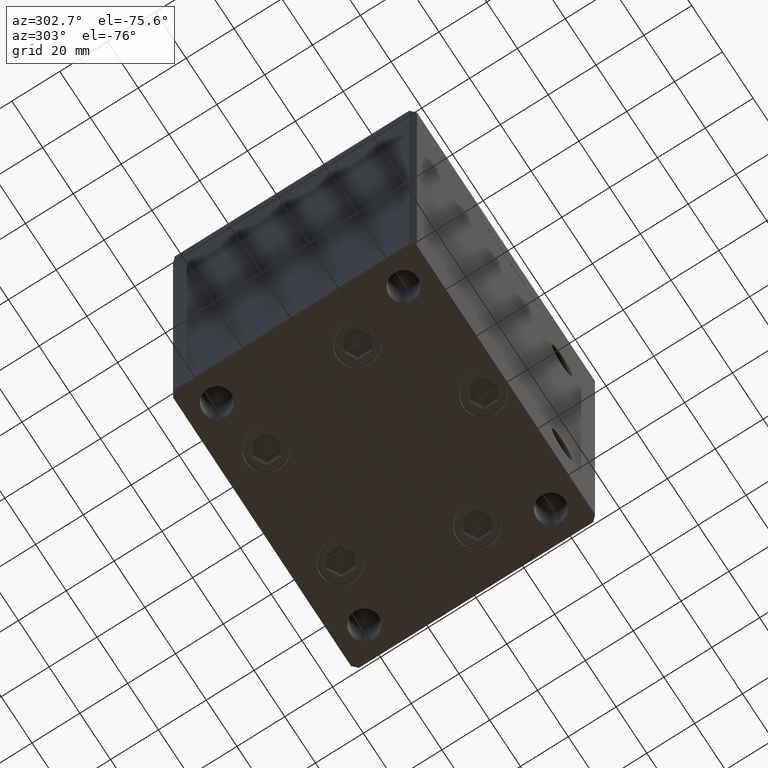
[diagram: clean part render]
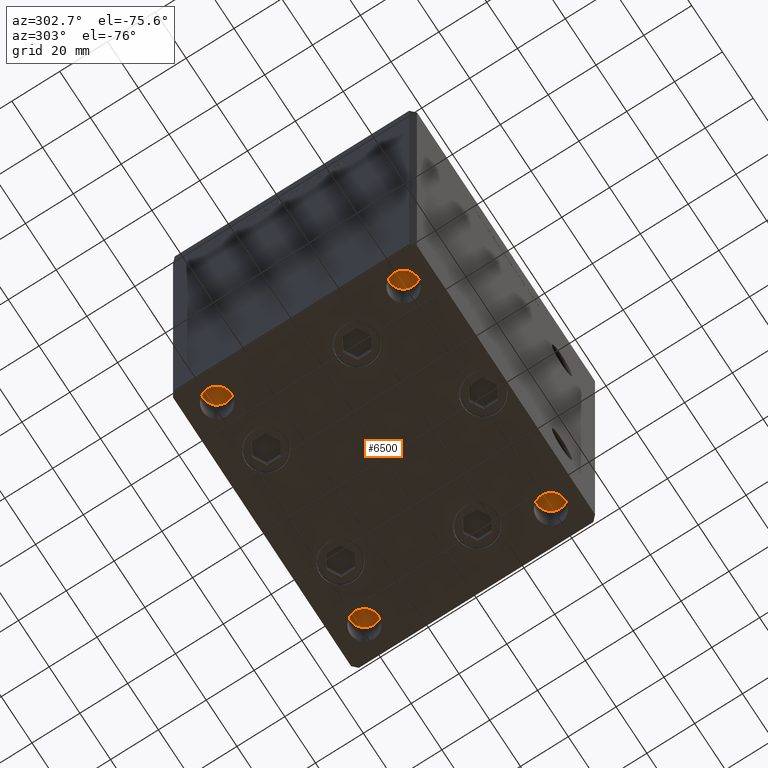
[diagram: same view with one face highlighted and labeled with its STEP entity id]
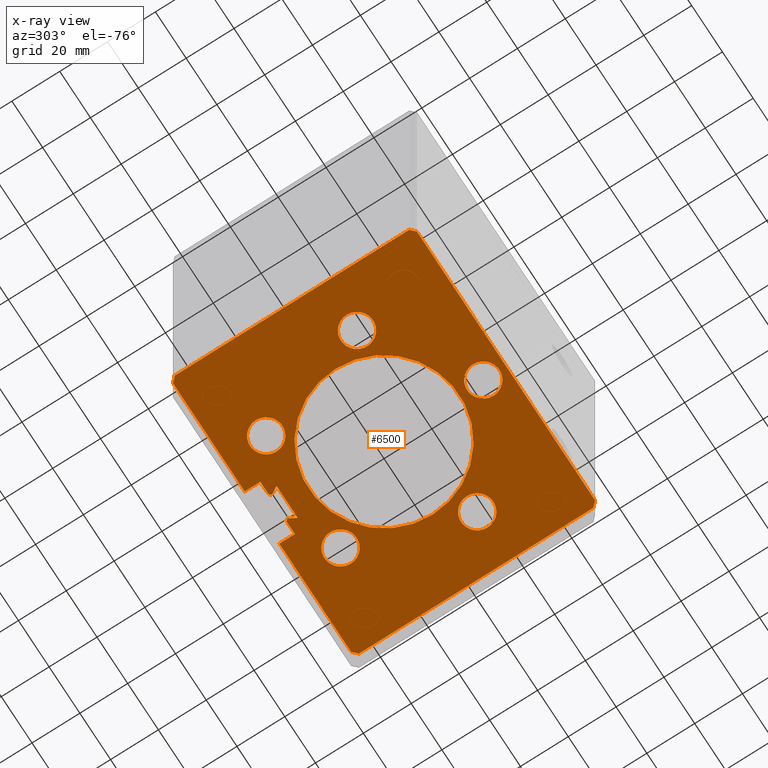
[diagram: x-ray of the same camera — body ghosted, the highlighted face saturated]
A machine part, auxiliary view. The second image highlights one B-rep face of the part: STEP entity #6500.
The next image is the same camera in x-ray: the body ghosted, the highlighted face saturated — about 0% of this face is hidden behind the body in this view.
In plain terms, the highlighted planar face has unit normal (0, 0, -1).
Its self-contained STEP definition (entity closure, byte-faithful):
#183 = ORIENTED_EDGE ( 'NONE', *, *, #1278, .F. ) ;
#347 = ORIENTED_EDGE ( 'NONE', *, *, #5618, .F. ) ;
#350 = CARTESIAN_POINT ( 'NONE',  ( 0.000000000000000000, 0.000000000000000000, 0.000000000000000000 ) ) ;
#413 = AXIS2_PLACEMENT_3D ( 'NONE', #39237, #3397, #47912 ) ;
#878 = FACE_BOUND ( 'NONE', #14622, .T. ) ;
#960 = LINE ( 'NONE', #25714, #5378 ) ;
#1192 = CARTESIAN_POINT ( 'NONE',  ( -6.183333333334001480, 44.50000000000000000, 0.000000000000000000 ) ) ;
#1209 = LINE ( 'NONE', #22258, #6580 ) ;
#1278 = EDGE_CURVE ( 'NONE', #5906, #28231, #8831, .T. ) ;
#1413 = VERTEX_POINT ( 'NONE', #8915 ) ;
#1502 = CARTESIAN_POINT ( 'NONE',  ( -5.249999999999994671, 43.56666666666598786, 0.000000000000000000 ) ) ;
#1626 = EDGE_CURVE ( 'NONE', #1413, #27657, #21430, .T. ) ;
#1825 = EDGE_CURVE ( 'NONE', #32110, #25484, #43777, .T. ) ;
#1886 = ORIENTED_EDGE ( 'NONE', *, *, #25340, .T. ) ;
#2003 = DIRECTION ( 'NONE',  ( -2.832201593431521726E-16, -1.000000000000000000, 0.000000000000000000 ) ) ;
#2180 = ORIENTED_EDGE ( 'NONE', *, *, #14448, .T. ) ;
#2249 = DIRECTION ( 'NONE',  ( -1.000000000000000000, 1.484255380514915423E-16, 0.000000000000000000 ) ) ;
#2533 = CARTESIAN_POINT ( 'NONE',  ( 30.94288941894911815, 33.71875000000000711, 0.000000000000000000 ) ) ;
#2564 = EDGE_CURVE ( 'NONE', #12321, #4527, #21509, .T. ) ;
#2909 = ORIENTED_EDGE ( 'NONE', *, *, #31407, .F. ) ;
#2963 = ORIENTED_EDGE ( 'NONE', *, *, #1825, .F. ) ;
#3156 = VECTOR ( 'NONE', #28902, 1000.000000000000114 ) ;
#3213 = VECTOR ( 'NONE', #20278, 1000.000000000000114 ) ;
#3397 = DIRECTION ( 'NONE',  ( 0.000000000000000000, 0.000000000000000000, -1.000000000000000000 ) ) ;
#3527 = LINE ( 'NONE', #23803, #27279 ) ;
#3559 = ORIENTED_EDGE ( 'NONE', *, *, #18997, .F. ) ;
#3741 = ORIENTED_EDGE ( 'NONE', *, *, #32759, .T. ) ;
#4016 = CIRCLE ( 'NONE', #34309, 6.749999999999999112 ) ;
#4138 = EDGE_CURVE ( 'NONE', #30783, #49177, #42574, .T. ) ;
#4145 = VERTEX_POINT ( 'NONE', #31694 ) ;
#4527 = VERTEX_POINT ( 'NONE', #12390 ) ;
#5287 = EDGE_CURVE ( 'NONE', #32110, #21593, #40594, .T. ) ;
#5378 = VECTOR ( 'NONE', #2003, 1000.000000000000000 ) ;
#5458 = VECTOR ( 'NONE', #27549, 1000.000000000000114 ) ;
#5618 = EDGE_CURVE ( 'NONE', #23953, #22920, #46786, .T. ) ;
#5791 = CARTESIAN_POINT ( 'NONE',  ( -59.99999999999998579, -49.00000000000000000, 0.000000000000000000 ) ) ;
#5876 = FACE_OUTER_BOUND ( 'NONE', #18843, .T. ) ;
#5906 = VERTEX_POINT ( 'NONE', #35725 ) ;
#5924 = CARTESIAN_POINT ( 'NONE',  ( 6.183333333334001480, 44.50000000000000000, 0.000000000000000000 ) ) ;
#6288 = EDGE_LOOP ( 'NONE', ( #33640, #2909 ) ) ;
#6500 = ADVANCED_FACE ( 'NONE', ( #49355, #878, #25372, #25892, #29840, #5876, #42212 ), #46178, .T. ) ;
#6580 = VECTOR ( 'NONE', #2249, 1000.000000000000000 ) ;
#6585 = CARTESIAN_POINT ( 'NONE',  ( 6.876153656360466826, 40.49999999999987210, 0.000000000000000000 ) ) ;
#6695 = ORIENTED_EDGE ( 'NONE', *, *, #41030, .T. ) ;
#6760 = CIRCLE ( 'NONE', #36207, 0.9333333333340068094 ) ;
#6798 = AXIS2_PLACEMENT_3D ( 'NONE', #45636, #45113, #36953 ) ;
#6804 = DIRECTION ( 'NONE',  ( 0.000000000000000000, 0.000000000000000000, -1.000000000000000000 ) ) ;
#7188 = VERTEX_POINT ( 'NONE', #12984 ) ;
#7659 = VECTOR ( 'NONE', #51024, 1000.000000000000000 ) ;
#7865 = EDGE_CURVE ( 'NONE', #12063, #47620, #42005, .T. ) ;
#8023 = ORIENTED_EDGE ( 'NONE', *, *, #9588, .F. ) ;
#8051 = CARTESIAN_POINT ( 'NONE',  ( -57.99999999999999289, 51.00000000000000711, 0.000000000000000000 ) ) ;
#8344 = VERTEX_POINT ( 'NONE', #1502 ) ;
#8540 = CARTESIAN_POINT ( 'NONE',  ( -6.749999999999993783, -41.50000000000000000, 0.000000000000000000 ) ) ;
#8831 = CIRCLE ( 'NONE', #413, 6.749999999999999112 ) ;
#8915 = CARTESIAN_POINT ( 'NONE',  ( -57.99999999999997868, -51.00000000000000711, 0.000000000000000000 ) ) ;
#9180 = CARTESIAN_POINT ( 'NONE',  ( -31.50000000000000000, 0.000000000000000000, 0.000000000000000000 ) ) ;
#9218 = EDGE_CURVE ( 'NONE', #28231, #5906, #20823, .T. ) ;
#9328 = CIRCLE ( 'NONE', #6798, 0.9333333333340068094 ) ;
#9588 = EDGE_CURVE ( 'NONE', #22920, #23953, #24170, .T. ) ;
#9810 = EDGE_CURVE ( 'NONE', #24364, #27657, #13344, .T. ) ;
#10279 = DIRECTION ( 'NONE',  ( 0.000000000000000000, 0.000000000000000000, -1.000000000000000000 ) ) ;
#10428 = EDGE_CURVE ( 'NONE', #19416, #4145, #4016, .T. ) ;
#10526 = LINE ( 'NONE', #10778, #25959 ) ;
#10756 = DIRECTION ( 'NONE',  ( -1.000000000000000000, 0.000000000000000000, 0.000000000000000000 ) ) ;
#10778 = CARTESIAN_POINT ( 'NONE',  ( 11.25000000000000178, 44.50000000000000000, 0.000000000000000000 ) ) ;
#11170 = DIRECTION ( 'NONE',  ( 1.000000000000000000, -0.000000000000000000, -0.000000000000000000 ) ) ;
#11474 = CIRCLE ( 'NONE', #19900, 31.50000000000000000 ) ;
#11633 = CARTESIAN_POINT ( 'NONE',  ( -11.25000000000000178, 51.00000000000000000, 0.000000000000000000 ) ) ;
#11931 = ORIENTED_EDGE ( 'NONE', *, *, #5287, .T. ) ;
#12063 = VERTEX_POINT ( 'NONE', #51096 ) ;
#12090 = EDGE_CURVE ( 'NONE', #47620, #25484, #10526, .T. ) ;
#12189 = EDGE_CURVE ( 'NONE', #12321, #48852, #1209, .T. ) ;
#12321 = VERTEX_POINT ( 'NONE', #39095 ) ;
#12390 = CARTESIAN_POINT ( 'NONE',  ( -11.25000000000000178, 44.50000000000000000, 0.000000000000000000 ) ) ;
#12439 = DIRECTION ( 'NONE',  ( 0.000000000000000000, 0.000000000000000000, -1.000000000000000000 ) ) ;
#12693 = VECTOR ( 'NONE', #38520, 1000.000000000000114 ) ;
#12984 = CARTESIAN_POINT ( 'NONE',  ( -60.00000000000001421, 49.00000000000000000, 0.000000000000000000 ) ) ;
#13206 = CIRCLE ( 'NONE', #29202, 6.749999999999999112 ) ;
#13216 = DIRECTION ( 'NONE',  ( 0.000000000000000000, 0.000000000000000000, -1.000000000000000000 ) ) ;
#13236 = DIRECTION ( 'NONE',  ( 0.000000000000000000, 0.000000000000000000, -1.000000000000000000 ) ) ;
#13241 = ORIENTED_EDGE ( 'NONE', *, *, #9810, .T. ) ;
#13344 = LINE ( 'NONE', #36289, #3156 ) ;
#13529 = CIRCLE ( 'NONE', #46345, 6.749999999999999112 ) ;
#13684 = CARTESIAN_POINT ( 'NONE',  ( 24.19288941894911815, 33.71875000000000711, 0.000000000000000000 ) ) ;
#14211 = DIRECTION ( 'NONE',  ( 0.000000000000000000, 1.000000000000000000, 0.000000000000000000 ) ) ;
#14448 = EDGE_CURVE ( 'NONE', #4527, #50931, #21200, .T. ) ;
#14622 = EDGE_LOOP ( 'NONE', ( #48787, #3559 ) ) ;
#14705 = CARTESIAN_POINT ( 'NONE',  ( 11.25000000000000178, 51.00000000000000000, 0.000000000000000000 ) ) ;
#14872 = ORIENTED_EDGE ( 'NONE', *, *, #20345, .T. ) ;
#15277 = DIRECTION ( 'NONE',  ( 1.000000000000000000, 0.000000000000000000, 0.000000000000000000 ) ) ;
#16588 = VECTOR ( 'NONE', #17234, 1000.000000000000000 ) ;
#17089 = EDGE_CURVE ( 'NONE', #23208, #17998, #23534, .T. ) ;
#17133 = VERTEX_POINT ( 'NONE', #17910 ) ;
#17234 = DIRECTION ( 'NONE',  ( 1.000000000000000000, -0.000000000000000000, -0.000000000000000000 ) ) ;
#17638 = DIRECTION ( 'NONE',  ( -1.000000000000000000, 0.000000000000000000, 0.000000000000000000 ) ) ;
#17754 = ORIENTED_EDGE ( 'NONE', *, *, #7865, .T. ) ;
#17773 = AXIS2_PLACEMENT_3D ( 'NONE', #27927, #23198, #15277 ) ;
#17910 = CARTESIAN_POINT ( 'NONE',  ( 45.87657522565563539, -13.83333333333332682, 0.000000000000000000 ) ) ;
#17998 = VERTEX_POINT ( 'NONE', #34782 ) ;
#18272 = ORIENTED_EDGE ( 'NONE', *, *, #4138, .T. ) ;
#18777 = AXIS2_PLACEMENT_3D ( 'NONE', #42482, #22204, #33810 ) ;
#18843 = EDGE_LOOP ( 'NONE', ( #45478, #2180, #24340, #1886, #14872, #40942, #6695, #44371, #17754, #30638, #2963, #11931, #3741, #13241, #47104, #46660, #41127, #44514, #29100 ) ) ;
#18997 = EDGE_CURVE ( 'NONE', #17998, #23208, #13529, .T. ) ;
#18999 = AXIS2_PLACEMENT_3D ( 'NONE', #50332, #38965, #42401 ) ;
#19105 = DIRECTION ( 'NONE',  ( -1.000000000000000000, 0.000000000000000000, 0.000000000000000000 ) ) ;
#19332 = AXIS2_PLACEMENT_3D ( 'NONE', #45850, #10279, #21881 ) ;
#19416 = VERTEX_POINT ( 'NONE', #39590 ) ;
#19756 = CARTESIAN_POINT ( 'NONE',  ( -59.99999999999998579, -49.00000000000000000, 0.000000000000000000 ) ) ;
#19797 = DIRECTION ( 'NONE',  ( -1.000000000000000000, 1.484255380514915423E-16, 0.000000000000000000 ) ) ;
#19845 = DIRECTION ( 'NONE',  ( 1.000000000000000000, 0.000000000000000000, 0.000000000000000000 ) ) ;
#19900 = AXIS2_PLACEMENT_3D ( 'NONE', #31286, #39712, #39460 ) ;
#20090 = CARTESIAN_POINT ( 'NONE',  ( -39.12657522565563539, -13.83333333333333570, 0.000000000000000000 ) ) ;
#20278 = DIRECTION ( 'NONE',  ( 0.7071067811865474617, -0.7071067811865474617, 0.000000000000000000 ) ) ;
#20345 = EDGE_CURVE ( 'NONE', #50568, #20923, #39021, .T. ) ;
#20823 = CIRCLE ( 'NONE', #27548, 6.749999999999999112 ) ;
#20839 = ORIENTED_EDGE ( 'NONE', *, *, #10428, .F. ) ;
#20850 = ORIENTED_EDGE ( 'NONE', *, *, #42985, .F. ) ;
#20923 = VERTEX_POINT ( 'NONE', #50523 ) ;
#21079 = EDGE_CURVE ( 'NONE', #7188, #49557, #35205, .T. ) ;
#21200 = LINE ( 'NONE', #1192, #16588 ) ;
#21430 = LINE ( 'NONE', #49102, #27331 ) ;
#21509 = LINE ( 'NONE', #21772, #45887 ) ;
#21522 = DIRECTION ( 'NONE',  ( -1.000000000000000000, 0.000000000000000000, 0.000000000000000000 ) ) ;
#21593 = VERTEX_POINT ( 'NONE', #34003 ) ;
#21630 = VECTOR ( 'NONE', #49142, 1000.000000000000000 ) ;
#21772 = CARTESIAN_POINT ( 'NONE',  ( -11.25000000000000178, 44.50000000000000000, 0.000000000000000000 ) ) ;
#21881 = DIRECTION ( 'NONE',  ( -1.000000000000000000, 0.000000000000000000, 0.000000000000000000 ) ) ;
#22175 = DIRECTION ( 'NONE',  ( -1.000000000000000000, 0.000000000000000000, 0.000000000000000000 ) ) ;
#22204 = DIRECTION ( 'NONE',  ( 0.000000000000000000, 0.000000000000000000, -1.000000000000000000 ) ) ;
#22258 = CARTESIAN_POINT ( 'NONE',  ( -11.25000000000000178, 51.00000000000000000, 0.000000000000000000 ) ) ;
#22294 = CARTESIAN_POINT ( 'NONE',  ( 57.99999999999997868, -51.00000000000000711, 0.000000000000000000 ) ) ;
#22465 = ORIENTED_EDGE ( 'NONE', *, *, #9218, .F. ) ;
#22555 = CARTESIAN_POINT ( 'NONE',  ( 5.082284216461515748E-15, -41.50000000000000000, 0.000000000000000000 ) ) ;
#22920 = VERTEX_POINT ( 'NONE', #2533 ) ;
#23198 = DIRECTION ( 'NONE',  ( -0.000000000000000000, -0.000000000000000000, -1.000000000000000000 ) ) ;
#23208 = VERTEX_POINT ( 'NONE', #8540 ) ;
#23534 = CIRCLE ( 'NONE', #19332, 6.749999999999999112 ) ;
#23643 = EDGE_CURVE ( 'NONE', #47140, #12063, #6760, .T. ) ;
#23803 = CARTESIAN_POINT ( 'NONE',  ( 6.876153656360466826, 40.49999999999987210, 0.000000000000000000 ) ) ;
#23953 = VERTEX_POINT ( 'NONE', #33280 ) ;
#24170 = CIRCLE ( 'NONE', #40986, 6.749999999999999112 ) ;
#24340 = ORIENTED_EDGE ( 'NONE', *, *, #25081, .T. ) ;
#24364 = VERTEX_POINT ( 'NONE', #50378 ) ;
#24824 = DIRECTION ( 'NONE',  ( -1.000000000000000000, 0.000000000000000000, 0.000000000000000000 ) ) ;
#25081 = EDGE_CURVE ( 'NONE', #50931, #8344, #9328, .T. ) ;
#25340 = EDGE_CURVE ( 'NONE', #8344, #50568, #48930, .T. ) ;
#25342 = CARTESIAN_POINT ( 'NONE',  ( 6.183333333334001480, 43.56666666666598786, 0.000000000000000000 ) ) ;
#25372 = FACE_BOUND ( 'NONE', #6288, .T. ) ;
#25484 = VERTEX_POINT ( 'NONE', #14705 ) ;
#25714 = CARTESIAN_POINT ( 'NONE',  ( 60.00000000000001421, 49.00000000000000000, 0.000000000000000000 ) ) ;
#25892 = FACE_BOUND ( 'NONE', #44911, .T. ) ;
#25959 = VECTOR ( 'NONE', #14211, 1000.000000000000000 ) ;
#25988 = DIRECTION ( 'NONE',  ( -0.000000000000000000, -1.000000000000000000, -0.000000000000000000 ) ) ;
#26607 = LINE ( 'NONE', #6585, #32350 ) ;
#27279 = VECTOR ( 'NONE', #11170, 1000.000000000000000 ) ;
#27331 = VECTOR ( 'NONE', #49895, 1000.000000000000000 ) ;
#27548 = AXIS2_PLACEMENT_3D ( 'NONE', #42572, #42055, #21522 ) ;
#27549 = DIRECTION ( 'NONE',  ( -0.7071067811865500152, -0.7071067811865451302, 0.000000000000000000 ) ) ;
#27657 = VERTEX_POINT ( 'NONE', #22294 ) ;
#27927 = CARTESIAN_POINT ( 'NONE',  ( -6.183333333334001480, 43.56666666666598786, 0.000000000000000000 ) ) ;
#28231 = VERTEX_POINT ( 'NONE', #36617 ) ;
#28272 = VECTOR ( 'NONE', #32427, 1000.000000000000114 ) ;
#28789 = DIRECTION ( 'NONE',  ( -0.000000000000000000, 0.000000000000000000, 1.000000000000000000 ) ) ;
#28849 = EDGE_LOOP ( 'NONE', ( #18272, #35667 ) ) ;
#28902 = DIRECTION ( 'NONE',  ( -0.7071067811865474617, -0.7071067811865474617, 0.000000000000000000 ) ) ;
#29100 = ORIENTED_EDGE ( 'NONE', *, *, #12189, .F. ) ;
#29202 = AXIS2_PLACEMENT_3D ( 'NONE', #33252, #13216, #22175 ) ;
#29288 = DIRECTION ( 'NONE',  ( -0.000000000000000000, -0.000000000000000000, -1.000000000000000000 ) ) ;
#29840 = FACE_BOUND ( 'NONE', #47304, .T. ) ;
#30560 = DIRECTION ( 'NONE',  ( -0.5000000000000016653, 0.8660254037844377084, 0.000000000000000000 ) ) ;
#30568 = CIRCLE ( 'NONE', #18777, 6.749999999999999112 ) ;
#30638 = ORIENTED_EDGE ( 'NONE', *, *, #12090, .T. ) ;
#30783 = VERTEX_POINT ( 'NONE', #9180 ) ;
#31286 = CARTESIAN_POINT ( 'NONE',  ( 0.000000000000000000, 0.000000000000000000, 0.000000000000000000 ) ) ;
#31407 = EDGE_CURVE ( 'NONE', #17133, #38798, #30568, .T. ) ;
#31694 = CARTESIAN_POINT ( 'NONE',  ( -32.37657522565563539, -13.83333333333333570, 0.000000000000000000 ) ) ;
#32110 = VERTEX_POINT ( 'NONE', #33273 ) ;
#32350 = VECTOR ( 'NONE', #30560, 1000.000000000000114 ) ;
#32427 = DIRECTION ( 'NONE',  ( 0.7071067811865500152, -0.7071067811865451302, 0.000000000000000000 ) ) ;
#32759 = EDGE_CURVE ( 'NONE', #21593, #24364, #960, .T. ) ;
#33252 = CARTESIAN_POINT ( 'NONE',  ( 39.12657522565563539, -13.83333333333332682, 0.000000000000000000 ) ) ;
#33273 = CARTESIAN_POINT ( 'NONE',  ( 57.99999999999999289, 51.00000000000000711, 0.000000000000000000 ) ) ;
#33280 = CARTESIAN_POINT ( 'NONE',  ( 17.44288941894911815, 33.71875000000000711, 0.000000000000000000 ) ) ;
#33640 = ORIENTED_EDGE ( 'NONE', *, *, #46908, .F. ) ;
#33810 = DIRECTION ( 'NONE',  ( -1.000000000000000000, 0.000000000000000000, 0.000000000000000000 ) ) ;
#34003 = CARTESIAN_POINT ( 'NONE',  ( 60.00000000000001421, 49.00000000000000000, 0.000000000000000000 ) ) ;
#34059 = CARTESIAN_POINT ( 'NONE',  ( 0.000000000000000000, 0.000000000000000000, 0.000000000000000000 ) ) ;
#34309 = AXIS2_PLACEMENT_3D ( 'NONE', #20090, #12439, #24824 ) ;
#34782 = CARTESIAN_POINT ( 'NONE',  ( 6.750000000000004441, -41.50000000000000000, 0.000000000000000000 ) ) ;
#34853 = EDGE_CURVE ( 'NONE', #48852, #7188, #39667, .T. ) ;
#34948 = CARTESIAN_POINT ( 'NONE',  ( -60.00000000000001421, 49.00000000000000000, 0.000000000000000000 ) ) ;
#34991 = DIRECTION ( 'NONE',  ( 1.000000000000000000, 0.000000000000000000, 0.000000000000000000 ) ) ;
#35011 = AXIS2_PLACEMENT_3D ( 'NONE', #13684, #42400, #17638 ) ;
#35205 = LINE ( 'NONE', #34948, #7659 ) ;
#35640 = CARTESIAN_POINT ( 'NONE',  ( 6.876153656360466826, 40.49999999999987210, 0.000000000000000000 ) ) ;
#35667 = ORIENTED_EDGE ( 'NONE', *, *, #46054, .T. ) ;
#35725 = CARTESIAN_POINT ( 'NONE',  ( -30.94288941894912170, 33.71875000000000000, 0.000000000000000000 ) ) ;
#35955 = EDGE_CURVE ( 'NONE', #20923, #50355, #3527, .T. ) ;
#36207 = AXIS2_PLACEMENT_3D ( 'NONE', #25342, #29288, #34991 ) ;
#36289 = CARTESIAN_POINT ( 'NONE',  ( 59.99999999999998579, -49.00000000000000000, 0.000000000000000000 ) ) ;
#36535 = CARTESIAN_POINT ( 'NONE',  ( -57.99999999999999289, 51.00000000000000711, 0.000000000000000000 ) ) ;
#36617 = CARTESIAN_POINT ( 'NONE',  ( -17.44288941894912170, 33.71875000000000000, 0.000000000000000000 ) ) ;
#36704 = AXIS2_PLACEMENT_3D ( 'NONE', #34059, #13236, #49882 ) ;
#36953 = DIRECTION ( 'NONE',  ( 1.000000000000000000, 0.000000000000000000, 0.000000000000000000 ) ) ;
#37875 = CARTESIAN_POINT ( 'NONE',  ( 5.375042956467942723, 43.09999999999898534, 0.000000000000000000 ) ) ;
#38520 = DIRECTION ( 'NONE',  ( -0.5000000000000016653, -0.8660254037844377084, -0.000000000000000000 ) ) ;
#38798 = VERTEX_POINT ( 'NONE', #47545 ) ;
#38965 = DIRECTION ( 'NONE',  ( 0.000000000000000000, 0.000000000000000000, -1.000000000000000000 ) ) ;
#39021 = LINE ( 'NONE', #42196, #12693 ) ;
#39095 = CARTESIAN_POINT ( 'NONE',  ( -11.25000000000000178, 51.00000000000000000, 0.000000000000000000 ) ) ;
#39237 = CARTESIAN_POINT ( 'NONE',  ( -24.19288941894912526, 33.71875000000000000, 0.000000000000000000 ) ) ;
#39460 = DIRECTION ( 'NONE',  ( 1.000000000000000000, 0.000000000000000000, 0.000000000000000000 ) ) ;
#39590 = CARTESIAN_POINT ( 'NONE',  ( -45.87657522565563539, -13.83333333333333570, 0.000000000000000000 ) ) ;
#39667 = LINE ( 'NONE', #8051, #5458 ) ;
#39712 = DIRECTION ( 'NONE',  ( -0.000000000000000000, 0.000000000000000000, 1.000000000000000000 ) ) ;
#40051 = CARTESIAN_POINT ( 'NONE',  ( 11.25000000000000178, 44.50000000000000000, 0.000000000000000000 ) ) ;
#40073 = CARTESIAN_POINT ( 'NONE',  ( 57.99999999999999289, 51.00000000000000711, 0.000000000000000000 ) ) ;
#40594 = LINE ( 'NONE', #40073, #28272 ) ;
#40857 = CIRCLE ( 'NONE', #18999, 6.749999999999999112 ) ;
#40877 = AXIS2_PLACEMENT_3D ( 'NONE', #350, #28789, #19845 ) ;
#40942 = ORIENTED_EDGE ( 'NONE', *, *, #35955, .T. ) ;
#40986 = AXIS2_PLACEMENT_3D ( 'NONE', #45365, #6804, #10756 ) ;
#41030 = EDGE_CURVE ( 'NONE', #50355, #47140, #26607, .T. ) ;
#41127 = ORIENTED_EDGE ( 'NONE', *, *, #21079, .F. ) ;
#41726 = CARTESIAN_POINT ( 'NONE',  ( 31.50000000000000000, 3.857637417314162689E-15, 0.000000000000000000 ) ) ;
#42005 = LINE ( 'NONE', #5924, #21630 ) ;
#42055 = DIRECTION ( 'NONE',  ( 0.000000000000000000, 0.000000000000000000, -1.000000000000000000 ) ) ;
#42196 = CARTESIAN_POINT ( 'NONE',  ( -6.876153656360466826, 40.49999999999987210, 0.000000000000000000 ) ) ;
#42212 = FACE_BOUND ( 'NONE', #28849, .T. ) ;
#42315 = DIRECTION ( 'NONE',  ( 0.000000000000000000, 0.000000000000000000, -1.000000000000000000 ) ) ;
#42400 = DIRECTION ( 'NONE',  ( 0.000000000000000000, 0.000000000000000000, -1.000000000000000000 ) ) ;
#42401 = DIRECTION ( 'NONE',  ( -1.000000000000000000, 0.000000000000000000, 0.000000000000000000 ) ) ;
#42482 = CARTESIAN_POINT ( 'NONE',  ( 39.12657522565563539, -13.83333333333332682, 0.000000000000000000 ) ) ;
#42572 = CARTESIAN_POINT ( 'NONE',  ( -24.19288941894912526, 33.71875000000000000, 0.000000000000000000 ) ) ;
#42574 = CIRCLE ( 'NONE', #40877, 31.50000000000000000 ) ;
#42985 = EDGE_CURVE ( 'NONE', #4145, #19416, #40857, .T. ) ;
#43736 = LINE ( 'NONE', #19756, #3213 ) ;
#43777 = LINE ( 'NONE', #11633, #46716 ) ;
#44371 = ORIENTED_EDGE ( 'NONE', *, *, #23643, .T. ) ;
#44514 = ORIENTED_EDGE ( 'NONE', *, *, #34853, .F. ) ;
#44911 = EDGE_LOOP ( 'NONE', ( #347, #8023 ) ) ;
#44922 = EDGE_LOOP ( 'NONE', ( #20839, #20850 ) ) ;
#45113 = DIRECTION ( 'NONE',  ( -0.000000000000000000, -0.000000000000000000, -1.000000000000000000 ) ) ;
#45365 = CARTESIAN_POINT ( 'NONE',  ( 24.19288941894911815, 33.71875000000000711, 0.000000000000000000 ) ) ;
#45478 = ORIENTED_EDGE ( 'NONE', *, *, #2564, .T. ) ;
#45636 = CARTESIAN_POINT ( 'NONE',  ( -6.183333333334001480, 43.56666666666598786, 0.000000000000000000 ) ) ;
#45850 = CARTESIAN_POINT ( 'NONE',  ( 5.082284216461515748E-15, -41.50000000000000000, 0.000000000000000000 ) ) ;
#45887 = VECTOR ( 'NONE', #25988, 1000.000000000000000 ) ;
#46054 = EDGE_CURVE ( 'NONE', #49177, #30783, #11474, .T. ) ;
#46178 = PLANE ( 'NONE',  #36704 ) ;
#46345 = AXIS2_PLACEMENT_3D ( 'NONE', #22555, #42315, #19105 ) ;
#46660 = ORIENTED_EDGE ( 'NONE', *, *, #50649, .F. ) ;
#46716 = VECTOR ( 'NONE', #19797, 1000.000000000000000 ) ;
#46786 = CIRCLE ( 'NONE', #35011, 6.749999999999999112 ) ;
#46908 = EDGE_CURVE ( 'NONE', #38798, #17133, #13206, .T. ) ;
#47104 = ORIENTED_EDGE ( 'NONE', *, *, #1626, .F. ) ;
#47140 = VERTEX_POINT ( 'NONE', #37875 ) ;
#47304 = EDGE_LOOP ( 'NONE', ( #183, #22465 ) ) ;
#47545 = CARTESIAN_POINT ( 'NONE',  ( 32.37657522565563539, -13.83333333333332682, 0.000000000000000000 ) ) ;
#47620 = VERTEX_POINT ( 'NONE', #40051 ) ;
#47884 = CARTESIAN_POINT ( 'NONE',  ( -6.183333333334001480, 44.50000000000000000, 0.000000000000000000 ) ) ;
#47912 = DIRECTION ( 'NONE',  ( -1.000000000000000000, 0.000000000000000000, 0.000000000000000000 ) ) ;
#47948 = CARTESIAN_POINT ( 'NONE',  ( -5.375042956467941835, 43.09999999999898534, 0.000000000000000000 ) ) ;
#48787 = ORIENTED_EDGE ( 'NONE', *, *, #17089, .F. ) ;
#48852 = VERTEX_POINT ( 'NONE', #36535 ) ;
#48930 = CIRCLE ( 'NONE', #17773, 0.9333333333340068094 ) ;
#49102 = CARTESIAN_POINT ( 'NONE',  ( -57.99999999999997868, -51.00000000000000711, 0.000000000000000000 ) ) ;
#49142 = DIRECTION ( 'NONE',  ( 1.000000000000000000, 0.000000000000000000, 0.000000000000000000 ) ) ;
#49177 = VERTEX_POINT ( 'NONE', #41726 ) ;
#49355 = FACE_BOUND ( 'NONE', #44922, .T. ) ;
#49557 = VERTEX_POINT ( 'NONE', #5791 ) ;
#49882 = DIRECTION ( 'NONE',  ( -1.000000000000000000, 0.000000000000000000, -0.000000000000000000 ) ) ;
#49895 = DIRECTION ( 'NONE',  ( 1.000000000000000000, 0.000000000000000000, 0.000000000000000000 ) ) ;
#50332 = CARTESIAN_POINT ( 'NONE',  ( -39.12657522565563539, -13.83333333333333570, 0.000000000000000000 ) ) ;
#50355 = VERTEX_POINT ( 'NONE', #35640 ) ;
#50378 = CARTESIAN_POINT ( 'NONE',  ( 59.99999999999998579, -49.00000000000000000, 0.000000000000000000 ) ) ;
#50523 = CARTESIAN_POINT ( 'NONE',  ( -6.876153656360466826, 40.49999999999987210, 0.000000000000000000 ) ) ;
#50568 = VERTEX_POINT ( 'NONE', #47948 ) ;
#50649 = EDGE_CURVE ( 'NONE', #49557, #1413, #43736, .T. ) ;
#50931 = VERTEX_POINT ( 'NONE', #47884 ) ;
#51024 = DIRECTION ( 'NONE',  ( 2.832201593431521726E-16, -1.000000000000000000, 0.000000000000000000 ) ) ;
#51096 = CARTESIAN_POINT ( 'NONE',  ( 6.183333333334001480, 44.50000000000000000, 0.000000000000000000 ) ) ;